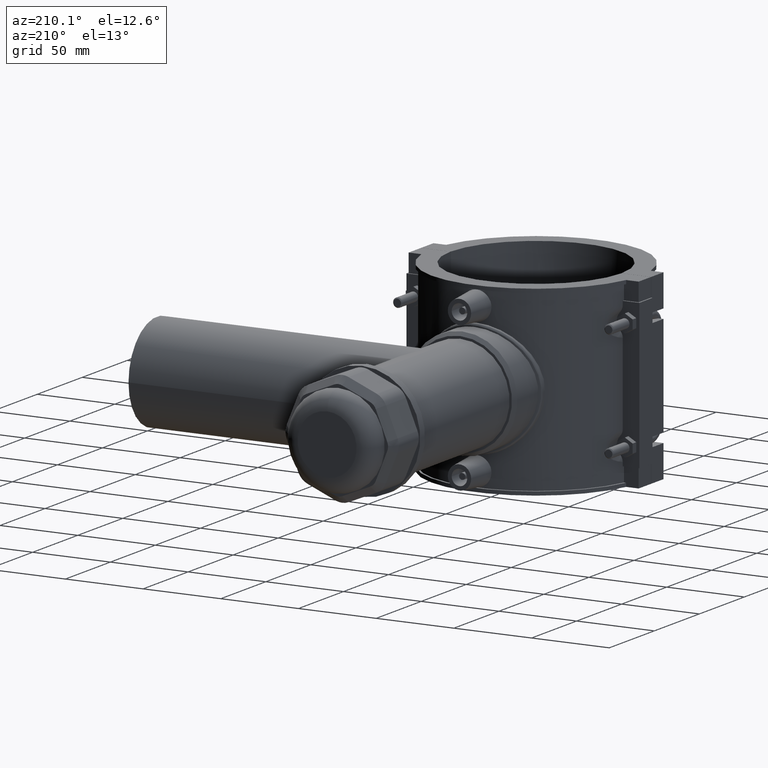
[diagram: clean part render]
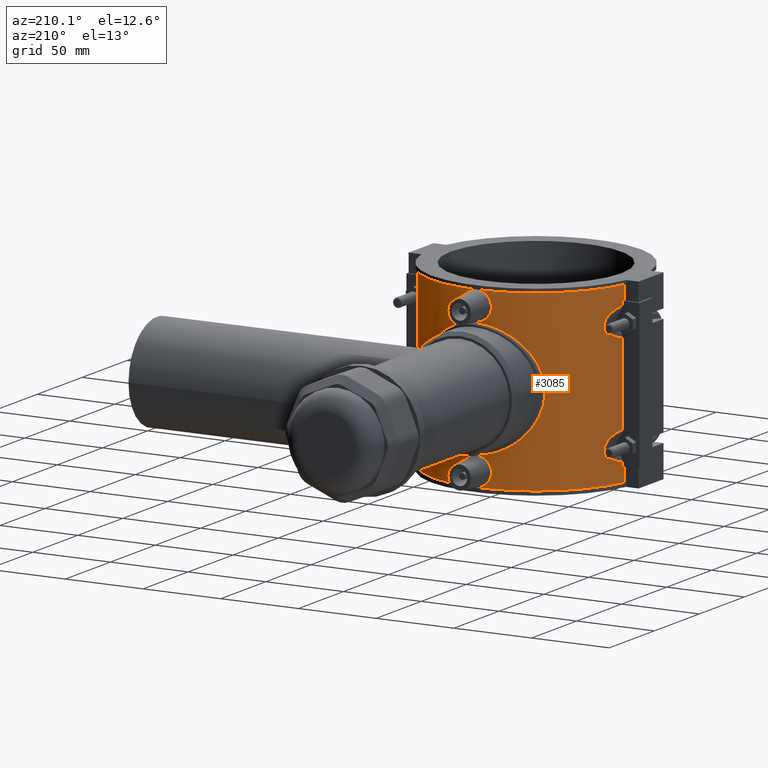
[diagram: same view with one face highlighted and labeled with its STEP entity id]
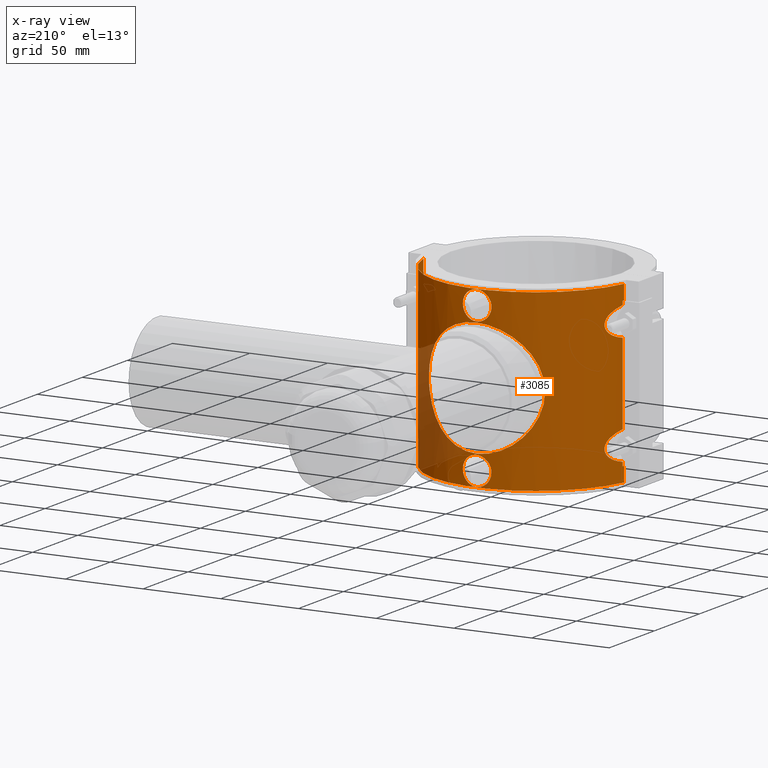
[diagram: x-ray of the same camera — body ghosted, the highlighted face saturated]
A machine part, auxiliary view. The second image highlights one B-rep face of the part: STEP entity #3085.
The next image is the same camera in x-ray: the body ghosted, the highlighted face saturated — about 9% of this face is hidden behind the body in this view.
In plain terms, the highlighted cylindrical surface (partial cylindrical patch) has radius 66 mm, axis along (0, 0, 1).
Its self-contained STEP definition (entity closure, byte-faithful):
#104=LINE('',#5264,#383);
#124=LINE('',#5347,#403);
#128=LINE('',#5355,#407);
#129=LINE('',#5359,#408);
#130=LINE('',#5374,#409);
#131=LINE('',#5391,#410);
#132=LINE('',#5394,#411);
#133=LINE('',#5398,#412);
#134=LINE('',#5414,#413);
#135=LINE('',#5431,#414);
#383=VECTOR('',#3762,9.43999999999999);
#403=VECTOR('',#3810,9.43999999999999);
#407=VECTOR('',#3816,9.43999999999999);
#408=VECTOR('',#3819,2.44823811899649);
#409=VECTOR('',#3820,52.096476237993);
#410=VECTOR('',#3821,2.4482381189965);
#411=VECTOR('',#3824,9.43999999999999);
#412=VECTOR('',#3827,2.4482381189965);
#413=VECTOR('',#3828,52.096476237993);
#414=VECTOR('',#3829,2.44823811899649);
#617=FACE_BOUND('',#1021,.T.);
#618=FACE_BOUND('',#1022,.T.);
#619=FACE_BOUND('',#1023,.T.);
#665=B_SPLINE_CURVE_WITH_KNOTS('',3,(#5166,#5167,#5168,#5169,#5170,#5171,
#5172,#5173,#5174,#5175,#5176,#5177,#5178,#5179,#5180,#5181,#5182,#5183,
#5184,#5185,#5186,#5187,#5188,#5189,#5190,#5191,#5192,#5193,#5194,#5195,
#5196,#5197,#5198,#5199,#5200,#5201,#5202,#5203,#5204,#5205,#5206,#5207,
#5208,#5209,#5210,#5211,#5212,#5213,#5214,#5215,#5216,#5217,#5218,#5219,
#5220,#5221,#5222,#5223,#5224,#5225,#5226,#5227,#5228,#5229,#5230,#5231),
 .UNSPECIFIED.,.T.,.F.,(4,2,2,2,2,2,2,2,2,2,2,2,2,2,2,2,2,2,2,2,2,2,2,2,
2,2,2,2,2,2,2,2,4),(0.,0.725542728932933,1.45108545786587,2.1766281867988,
2.90217091573173,3.62416505609038,4.34615919644903,5.06815333680768,5.79014747716633,
6.51214161752498,7.23413575788363,7.95612989824228,8.67812403860093,9.40366676753387,
10.1292094964668,10.8547522253997,11.5802949543327,12.3058376832656,13.0313804121985,
13.7569231411315,14.4824658700644,15.2044600104231,15.9264541507817,16.6484482911404,
17.370442431499,18.0924365718577,18.8144307122163,19.536424852575,20.2584189929336,
20.9839617218665,21.7095044507995,22.4350471797324,23.1605899086653),
 .UNSPECIFIED.);
#668=B_SPLINE_CURVE_WITH_KNOTS('',3,(#5361,#5362,#5363,#5364,#5365,#5366,
#5367,#5368,#5369,#5370,#5371,#5372),.UNSPECIFIED.,.F.,.F.,(4,1,1,1,1,1,
1,1,1,4),(-3.87372629675472,-3.39800032867908,-2.92227436060344,-2.44654839252779,
-2.32761690050888,-1.97082242445215,-1.73295944041433,-1.49509645637651,
-1.01937048830087,-0.543644520225222),.UNSPECIFIED.);
#669=B_SPLINE_CURVE_WITH_KNOTS('',3,(#5376,#5377,#5378,#5379,#5380,#5381,
#5382,#5383,#5384,#5385,#5386,#5387,#5388,#5389),.UNSPECIFIED.,.F.,.F.,
(4,1,1,1,1,1,1,1,1,1,1,4),(-3.87372630043149,-3.3980003318308,-2.92227436323011,
-2.68441137892976,-2.44654839462942,-2.20868541032907,-1.97082242602873,
-1.85189093387856,-1.73295944172838,-1.49509645742804,-1.01937048882735,
-0.543644520226659),.UNSPECIFIED.);
#670=B_SPLINE_CURVE_WITH_KNOTS('',3,(#5400,#5401,#5402,#5403,#5404,#5405,
#5406,#5407,#5408,#5409,#5410,#5411,#5412),.UNSPECIFIED.,.F.,.F.,(4,1,1,
1,1,1,1,1,1,1,4),(-3.87318618089828,-3.39746020268988,-2.92173422448147,
-2.68387123537727,-2.44600824627306,-2.20814525716886,-1.97028226806466,
-1.73241927896045,-1.49455628985625,-1.01883031164784,-0.543104333439435),
 .UNSPECIFIED.);
#671=B_SPLINE_CURVE_WITH_KNOTS('',3,(#5416,#5417,#5418,#5419,#5420,#5421,
#5422,#5423,#5424,#5425,#5426,#5427,#5428,#5429),.UNSPECIFIED.,.F.,.F.,
(4,1,1,1,1,1,1,1,1,1,1,4),(-3.87372630198934,-3.39800033316619,-2.92227436434304,
-2.68441137993146,-2.44654839551988,-2.20868541110831,-1.97082242669673,
-1.85189093449094,-1.73295944228515,-1.49509645787358,-1.01937048905042,
-0.543644520227269),.UNSPECIFIED.);
#672=B_SPLINE_CURVE_WITH_KNOTS('',3,(#5434,#5435,#5436,#5437,#5438,#5439,
#5440,#5441,#5442,#5443,#5444,#5445,#5446,#5447,#5448,#5449,#5450,#5451,
#5452,#5453,#5454,#5455,#5456,#5457,#5458,#5459,#5460,#5461,#5462,#5463,
#5464,#5465,#5466,#5467),.UNSPECIFIED.,.T.,.F.,(4,2,2,2,2,2,2,2,2,2,2,2,
2,2,2,2,4),(0.,0.346935904986798,0.693871809973595,1.04030921731693,1.38674662466027,
1.73318403200361,2.07962143934695,2.42655734433375,2.77349324932054,3.12042915430734,
3.46736505929414,3.81380246663748,4.16023987398082,4.50667728132415,4.85311468866749,
5.20005059365429,5.54698649864109),.UNSPECIFIED.);
#673=B_SPLINE_CURVE_WITH_KNOTS('',3,(#5469,#5470,#5471,#5472,#5473,#5474,
#5475,#5476,#5477,#5478,#5479,#5480,#5481,#5482,#5483,#5484,#5485,#5486,
#5487,#5488,#5489,#5490,#5491,#5492,#5493,#5494,#5495,#5496,#5497,#5498,
#5499,#5500,#5501,#5502),.UNSPECIFIED.,.T.,.F.,(4,2,2,2,2,2,2,2,2,2,2,2,
2,2,2,2,4),(0.,0.346935904986798,0.693871809973595,1.04030921731693,1.38674662466027,
1.73318403200361,2.07962143934695,2.42655734433375,2.77349324932054,3.12042915430734,
3.46736505929414,3.81380246663748,4.16023987398082,4.50667728132415,4.85311468866749,
5.20005059365429,5.54698649864109),.UNSPECIFIED.);
#726=CYLINDRICAL_SURFACE('',#3322,66.);
#816=FACE_OUTER_BOUND('',#1020,.T.);
#1020=EDGE_LOOP('',(#2281,#2282,#2283,#2284,#2285,#2286,#2287,#2288,#2289,
#2290,#2291,#2292,#2293,#2294,#2295,#2296,#2297,#2298,#2299,#2300));
#1021=EDGE_LOOP('',(#2301));
#1022=EDGE_LOOP('',(#2302));
#1023=EDGE_LOOP('',(#2303));
#1221=CIRCLE('',#3301,66.);
#1229=CIRCLE('',#3315,66.);
#1233=CIRCLE('',#3323,66.);
#1234=CIRCLE('',#3324,66.);
#1235=CIRCLE('',#3325,66.);
#1236=CIRCLE('',#3326,66.);
#1359=VERTEX_POINT('',#5165);
#1364=VERTEX_POINT('',#5242);
#1365=VERTEX_POINT('',#5244);
#1372=VERTEX_POINT('',#5263);
#1392=VERTEX_POINT('',#5330);
#1393=VERTEX_POINT('',#5332);
#1397=VERTEX_POINT('',#5346);
#1400=VERTEX_POINT('',#5354);
#1401=VERTEX_POINT('',#5356);
#1402=VERTEX_POINT('',#5358);
#1403=VERTEX_POINT('',#5360);
#1404=VERTEX_POINT('',#5373);
#1405=VERTEX_POINT('',#5375);
#1406=VERTEX_POINT('',#5390);
#1407=VERTEX_POINT('',#5393);
#1408=VERTEX_POINT('',#5395);
#1409=VERTEX_POINT('',#5397);
#1410=VERTEX_POINT('',#5399);
#1411=VERTEX_POINT('',#5413);
#1412=VERTEX_POINT('',#5415);
#1413=VERTEX_POINT('',#5430);
#1414=VERTEX_POINT('',#5433);
#1415=VERTEX_POINT('',#5468);
#1687=EDGE_CURVE('',#1359,#1359,#665,.T.);
#1694=EDGE_CURVE('',#1364,#1365,#1221,.T.);
#1702=EDGE_CURVE('',#1372,#1364,#104,.T.);
#1725=EDGE_CURVE('',#1393,#1392,#1229,.T.);
#1732=EDGE_CURVE('',#1393,#1397,#124,.T.);
#1736=EDGE_CURVE('',#1400,#1365,#128,.T.);
#1737=EDGE_CURVE('',#1400,#1401,#1233,.T.);
#1738=EDGE_CURVE('',#1401,#1402,#129,.T.);
#1739=EDGE_CURVE('',#1403,#1402,#668,.T.);
#1740=EDGE_CURVE('',#1403,#1404,#130,.T.);
#1741=EDGE_CURVE('',#1405,#1404,#669,.T.);
#1742=EDGE_CURVE('',#1405,#1406,#131,.T.);
#1743=EDGE_CURVE('',#1406,#1397,#1234,.T.);
#1744=EDGE_CURVE('',#1392,#1407,#132,.T.);
#1745=EDGE_CURVE('',#1407,#1408,#1235,.T.);
#1746=EDGE_CURVE('',#1408,#1409,#133,.T.);
#1747=EDGE_CURVE('',#1410,#1409,#670,.T.);
#1748=EDGE_CURVE('',#1410,#1411,#134,.T.);
#1749=EDGE_CURVE('',#1412,#1411,#671,.T.);
#1750=EDGE_CURVE('',#1412,#1413,#135,.T.);
#1751=EDGE_CURVE('',#1413,#1372,#1236,.T.);
#1752=EDGE_CURVE('',#1414,#1414,#672,.T.);
#1753=EDGE_CURVE('',#1415,#1415,#673,.T.);
#2281=ORIENTED_EDGE('',*,*,#1694,.T.);
#2282=ORIENTED_EDGE('',*,*,#1736,.F.);
#2283=ORIENTED_EDGE('',*,*,#1737,.T.);
#2284=ORIENTED_EDGE('',*,*,#1738,.T.);
#2285=ORIENTED_EDGE('',*,*,#1739,.F.);
#2286=ORIENTED_EDGE('',*,*,#1740,.T.);
#2287=ORIENTED_EDGE('',*,*,#1741,.F.);
#2288=ORIENTED_EDGE('',*,*,#1742,.T.);
#2289=ORIENTED_EDGE('',*,*,#1743,.T.);
#2290=ORIENTED_EDGE('',*,*,#1732,.F.);
#2291=ORIENTED_EDGE('',*,*,#1725,.T.);
#2292=ORIENTED_EDGE('',*,*,#1744,.T.);
#2293=ORIENTED_EDGE('',*,*,#1745,.T.);
#2294=ORIENTED_EDGE('',*,*,#1746,.T.);
#2295=ORIENTED_EDGE('',*,*,#1747,.F.);
#2296=ORIENTED_EDGE('',*,*,#1748,.T.);
#2297=ORIENTED_EDGE('',*,*,#1749,.F.);
#2298=ORIENTED_EDGE('',*,*,#1750,.T.);
#2299=ORIENTED_EDGE('',*,*,#1751,.T.);
#2300=ORIENTED_EDGE('',*,*,#1702,.T.);
#2301=ORIENTED_EDGE('',*,*,#1687,.T.);
#2302=ORIENTED_EDGE('',*,*,#1752,.T.);
#2303=ORIENTED_EDGE('',*,*,#1753,.T.);
#3085=ADVANCED_FACE('',(#816,#617,#618,#619),#726,.T.);
#3301=AXIS2_PLACEMENT_3D('',#5246,#3744,#3745);
#3315=AXIS2_PLACEMENT_3D('',#5333,#3793,#3794);
#3322=AXIS2_PLACEMENT_3D('',#5353,#3814,#3815);
#3323=AXIS2_PLACEMENT_3D('',#5357,#3817,#3818);
#3324=AXIS2_PLACEMENT_3D('',#5392,#3822,#3823);
#3325=AXIS2_PLACEMENT_3D('',#5396,#3825,#3826);
#3326=AXIS2_PLACEMENT_3D('',#5432,#3830,#3831);
#3744=DIRECTION('center_axis',(0.,0.,1.));
#3745=DIRECTION('ref_axis',(1.,0.,0.));
#3762=DIRECTION('',(0.,0.,-1.));
#3793=DIRECTION('center_axis',(0.,0.,-1.));
#3794=DIRECTION('ref_axis',(1.,0.,0.));
#3810=DIRECTION('',(0.,0.,-1.));
#3814=DIRECTION('center_axis',(0.,0.,1.));
#3815=DIRECTION('ref_axis',(1.,0.,0.));
#3816=DIRECTION('',(0.,0.,-1.));
#3817=DIRECTION('center_axis',(0.,0.,-1.));
#3818=DIRECTION('ref_axis',(1.,0.,0.));
#3819=DIRECTION('',(0.,0.,1.));
#3820=DIRECTION('',(0.,0.,1.));
#3821=DIRECTION('',(0.,0.,1.));
#3822=DIRECTION('center_axis',(0.,0.,1.));
#3823=DIRECTION('ref_axis',(1.,0.,0.));
#3824=DIRECTION('',(0.,0.,-1.));
#3825=DIRECTION('center_axis',(0.,0.,1.));
#3826=DIRECTION('ref_axis',(1.,0.,0.));
#3827=DIRECTION('',(0.,0.,-1.));
#3828=DIRECTION('',(0.,0.,-1.));
#3829=DIRECTION('',(0.,0.,-1.));
#3830=DIRECTION('center_axis',(0.,0.,-1.));
#3831=DIRECTION('ref_axis',(1.,0.,0.));
#5165=CARTESIAN_POINT('',(37.4,54.3805112149564,1.66533453693773E-14));
#5166=CARTESIAN_POINT('Ctrl Pts',(37.4,54.3805112149564,5.55111512312578E-16));
#5167=CARTESIAN_POINT('Ctrl Pts',(37.4,54.3805112149564,2.41847576310978));
#5168=CARTESIAN_POINT('Ctrl Pts',(37.161839003041,54.5466959266596,4.89367138877894));
#5169=CARTESIAN_POINT('Ctrl Pts',(36.1861310870905,55.1988064124212,9.77313752308639));
#5170=CARTESIAN_POINT('Ctrl Pts',(35.4490569399691,55.6833472079297,12.1776875482335));
#5171=CARTESIAN_POINT('Ctrl Pts',(33.5268818710942,56.8613988495874,16.759483445807));
#5172=CARTESIAN_POINT('Ctrl Pts',(32.3402312880143,57.5542145172149,18.9413900650701));
#5173=CARTESIAN_POINT('Ctrl Pts',(29.6168256407249,59.0018796895188,22.96759580585));
#5174=CARTESIAN_POINT('Ctrl Pts',(28.079576648165,59.7554780190203,24.8120105845888));
#5175=CARTESIAN_POINT('Ctrl Pts',(24.8200013252692,61.181012447245,28.0715859074846));
#5176=CARTESIAN_POINT('Ctrl Pts',(22.9796563810843,61.9067502295079,29.607582738943));
#5177=CARTESIAN_POINT('Ctrl Pts',(18.9521567466192,63.2560359644058,32.3340272483939));
#5178=CARTESIAN_POINT('Ctrl Pts',(16.7648267214637,63.8786503921841,33.5246778260897));
#5179=CARTESIAN_POINT('Ctrl Pts',(12.1713059827279,64.9107133927396,35.4516965648964));
#5180=CARTESIAN_POINT('Ctrl Pts',(9.76054283025698,65.3204804039122,36.1896157420675));
#5181=CARTESIAN_POINT('Ctrl Pts',(4.87826740173336,65.865285725618,37.163947463763));
#5182=CARTESIAN_POINT('Ctrl Pts',(2.40664713452884,66.,37.4));
#5183=CARTESIAN_POINT('Ctrl Pts',(-2.40664713452883,66.,37.4));
#5184=CARTESIAN_POINT('Ctrl Pts',(-4.87826740173336,65.865285725618,37.163947463763));
#5185=CARTESIAN_POINT('Ctrl Pts',(-9.76054283025697,65.3204804039122,36.1896157420675));
#5186=CARTESIAN_POINT('Ctrl Pts',(-12.1713059827279,64.9107133927396,35.4516965648964));
#5187=CARTESIAN_POINT('Ctrl Pts',(-16.7648267214637,63.8786503921841,33.5246778260897));
#5188=CARTESIAN_POINT('Ctrl Pts',(-18.9521567466192,63.2560359644058,32.3340272483939));
#5189=CARTESIAN_POINT('Ctrl Pts',(-22.9796563810843,61.9067502295079,29.607582738943));
#5190=CARTESIAN_POINT('Ctrl Pts',(-24.8200013252692,61.181012447245,28.0715859074846));
#5191=CARTESIAN_POINT('Ctrl Pts',(-28.079576648165,59.7554780190203,24.8120105845888));
#5192=CARTESIAN_POINT('Ctrl Pts',(-29.6168256407249,59.0018796895188,22.96759580585));
#5193=CARTESIAN_POINT('Ctrl Pts',(-32.3402312880143,57.5542145172149,18.9413900650701));
#5194=CARTESIAN_POINT('Ctrl Pts',(-33.5268818710942,56.8613988495874,16.759483445807));
#5195=CARTESIAN_POINT('Ctrl Pts',(-35.4490569399691,55.6833472079297,12.1776875482335));
#5196=CARTESIAN_POINT('Ctrl Pts',(-36.1861310870905,55.1988064124211,9.77313752308639));
#5197=CARTESIAN_POINT('Ctrl Pts',(-37.161839003041,54.5466959266596,4.89367138877893));
#5198=CARTESIAN_POINT('Ctrl Pts',(-37.4,54.3805112149564,2.41847576310977));
#5199=CARTESIAN_POINT('Ctrl Pts',(-37.4,54.3805112149564,-2.41847576310978));
#5200=CARTESIAN_POINT('Ctrl Pts',(-37.161839003041,54.5466959266596,-4.89367138877893));
#5201=CARTESIAN_POINT('Ctrl Pts',(-36.1861310870905,55.1988064124211,-9.77313752308638));
#5202=CARTESIAN_POINT('Ctrl Pts',(-35.4490569399691,55.6833472079297,-12.1776875482335));
#5203=CARTESIAN_POINT('Ctrl Pts',(-33.5268818710942,56.8613988495874,-16.759483445807));
#5204=CARTESIAN_POINT('Ctrl Pts',(-32.3402312880143,57.5542145172149,-18.9413900650701));
#5205=CARTESIAN_POINT('Ctrl Pts',(-29.6168256407249,59.0018796895188,-22.96759580585));
#5206=CARTESIAN_POINT('Ctrl Pts',(-28.079576648165,59.7554780190203,-24.8120105845888));
#5207=CARTESIAN_POINT('Ctrl Pts',(-24.8200013252692,61.181012447245,-28.0715859074846));
#5208=CARTESIAN_POINT('Ctrl Pts',(-22.9796563810843,61.9067502295079,-29.607582738943));
#5209=CARTESIAN_POINT('Ctrl Pts',(-18.9521567466192,63.2560359644058,-32.3340272483939));
#5210=CARTESIAN_POINT('Ctrl Pts',(-16.7648267214637,63.8786503921841,-33.5246778260897));
#5211=CARTESIAN_POINT('Ctrl Pts',(-12.1713059827279,64.9107133927396,-35.4516965648964));
#5212=CARTESIAN_POINT('Ctrl Pts',(-9.76054283025697,65.3204804039122,-36.1896157420675));
#5213=CARTESIAN_POINT('Ctrl Pts',(-4.87826740173336,65.865285725618,-37.163947463763));
#5214=CARTESIAN_POINT('Ctrl Pts',(-2.40664713452884,66.,-37.4));
#5215=CARTESIAN_POINT('Ctrl Pts',(2.40664713452883,66.,-37.4));
#5216=CARTESIAN_POINT('Ctrl Pts',(4.87826740173334,65.865285725618,-37.163947463763));
#5217=CARTESIAN_POINT('Ctrl Pts',(9.76054283025695,65.3204804039122,-36.1896157420676));
#5218=CARTESIAN_POINT('Ctrl Pts',(12.1713059827279,64.9107133927396,-35.4516965648964));
#5219=CARTESIAN_POINT('Ctrl Pts',(16.7648267214637,63.8786503921841,-33.5246778260897));
#5220=CARTESIAN_POINT('Ctrl Pts',(18.9521567466192,63.2560359644058,-32.3340272483939));
#5221=CARTESIAN_POINT('Ctrl Pts',(22.9796563810843,61.9067502295079,-29.607582738943));
#5222=CARTESIAN_POINT('Ctrl Pts',(24.8200013252692,61.181012447245,-28.0715859074846));
#5223=CARTESIAN_POINT('Ctrl Pts',(28.079576648165,59.7554780190203,-24.8120105845888));
#5224=CARTESIAN_POINT('Ctrl Pts',(29.6168256407249,59.0018796895188,-22.96759580585));
#5225=CARTESIAN_POINT('Ctrl Pts',(32.3402312880143,57.5542145172149,-18.9413900650701));
#5226=CARTESIAN_POINT('Ctrl Pts',(33.5268818710942,56.8613988495874,-16.759483445807));
#5227=CARTESIAN_POINT('Ctrl Pts',(35.4490569399691,55.6833472079297,-12.1776875482335));
#5228=CARTESIAN_POINT('Ctrl Pts',(36.1861310870905,55.1988064124211,-9.77313752308638));
#5229=CARTESIAN_POINT('Ctrl Pts',(37.161839003041,54.5466959266596,-4.89367138877893));
#5230=CARTESIAN_POINT('Ctrl Pts',(37.4,54.3805112149564,-2.41847576310978));
#5231=CARTESIAN_POINT('Ctrl Pts',(37.4,54.3805112149564,-1.11022302462516E-15));
#5242=CARTESIAN_POINT('',(64.5518202686803,13.75,-56.64));
#5244=CARTESIAN_POINT('',(-64.5518202686803,13.75,-56.64));
#5246=CARTESIAN_POINT('Origin',(0.,0.,-56.64));
#5263=CARTESIAN_POINT('',(64.5518202686802,13.7500000000001,-47.2));
#5264=CARTESIAN_POINT('',(64.5518202686803,13.75,0.));
#5330=CARTESIAN_POINT('',(64.5518202686803,13.75,56.64));
#5332=CARTESIAN_POINT('',(-64.5518202686803,13.75,56.64));
#5333=CARTESIAN_POINT('Origin',(0.,0.,56.64));
#5346=CARTESIAN_POINT('',(-64.5518202686802,13.7500000000001,47.2));
#5347=CARTESIAN_POINT('',(-64.5518202686803,13.75,0.));
#5353=CARTESIAN_POINT('Origin',(0.,0.,0.));
#5354=CARTESIAN_POINT('',(-64.5518202686802,13.7500000000001,-47.2));
#5355=CARTESIAN_POINT('',(-64.5518202686803,13.75,0.));
#5356=CARTESIAN_POINT('',(-64.3306886330311,14.7500000000003,-47.2));
#5357=CARTESIAN_POINT('Origin',(0.,0.,-47.2));
#5358=CARTESIAN_POINT('',(-64.3306886330311,14.7500000000003,-44.7517618810035));
#5359=CARTESIAN_POINT('',(-64.3306886330311,14.7500000000003,0.));
#5360=CARTESIAN_POINT('',(-64.3306886330311,14.7500000000003,-26.0482381189965));
#5361=CARTESIAN_POINT('Ctrl Pts',(-64.3306886330311,14.7500000000003,-26.0482381189965));
#5362=CARTESIAN_POINT('Ctrl Pts',(-63.9527912554927,16.3981626121804,-26.3827329004399));
#5363=CARTESIAN_POINT('Ctrl Pts',(-63.0778690868478,19.6261025075132,-27.2310383266353));
#5364=CARTESIAN_POINT('Ctrl Pts',(-61.5137264809278,24.0558903026526,-29.3000957522392));
#5365=CARTESIAN_POINT('Ctrl Pts',(-60.3897986198586,26.6421844238724,-31.9335356590793));
#5366=CARTESIAN_POINT('Ctrl Pts',(-59.9224916991423,27.6653952476638,-34.9717815952484));
#5367=CARTESIAN_POINT('Ctrl Pts',(-60.0554425576268,27.3816590012757,-37.4440252437804));
#5368=CARTESIAN_POINT('Ctrl Pts',(-60.7699777265275,25.7702881327455,-39.7566764526898));
#5369=CARTESIAN_POINT('Ctrl Pts',(-61.7657357889132,23.3326659218883,-41.8352017051385));
#5370=CARTESIAN_POINT('Ctrl Pts',(-63.0806192708269,19.6212087501384,-43.5753048876795));
#5371=CARTESIAN_POINT('Ctrl Pts',(-63.9527912554927,16.3981626121804,-44.4172670995602));
#5372=CARTESIAN_POINT('Ctrl Pts',(-64.3306886330311,14.7500000000003,-44.7517618810035));
#5373=CARTESIAN_POINT('',(-64.3306886330311,14.7500000000003,26.0482381189965));
#5374=CARTESIAN_POINT('',(-64.3306886330311,14.7500000000003,0.));
#5375=CARTESIAN_POINT('',(-64.3306886330311,14.7500000000003,44.7517618810035));
#5376=CARTESIAN_POINT('Ctrl Pts',(-64.3306886330311,14.7500000000003,44.7517618810035));
#5377=CARTESIAN_POINT('Ctrl Pts',(-63.9527912572163,16.3981626046634,44.4172671010857));
#5378=CARTESIAN_POINT('Ctrl Pts',(-63.0798147120383,19.6225851019796,43.5753357245552));
#5379=CARTESIAN_POINT('Ctrl Pts',(-61.7685213603749,23.3278982985863,41.834867320585));
#5380=CARTESIAN_POINT('Ctrl Pts',(-60.768119001488,25.7734565677027,39.7567991110615));
#5381=CARTESIAN_POINT('Ctrl Pts',(-60.1667084578027,27.1355063513127,37.7748837116343));
#5382=CARTESIAN_POINT('Ctrl Pts',(-59.9165282850681,27.6756756011679,35.3998998402149));
#5383=CARTESIAN_POINT('Ctrl Pts',(-60.1248627173646,27.2257424100493,33.4215328100373));
#5384=CARTESIAN_POINT('Ctrl Pts',(-60.4687588967187,26.4521723165861,32.0345097618895));
#5385=CARTESIAN_POINT('Ctrl Pts',(-60.8927014330096,25.4685179279021,30.782923973912));
#5386=CARTESIAN_POINT('Ctrl Pts',(-61.7684514854648,23.3278392592335,28.9644641587819));
#5387=CARTESIAN_POINT('Ctrl Pts',(-63.0818663583026,19.6193517478855,27.2259037664876));
#5388=CARTESIAN_POINT('Ctrl Pts',(-63.9527912572163,16.3981626046634,26.3827328989143));
#5389=CARTESIAN_POINT('Ctrl Pts',(-64.3306886330311,14.7500000000003,26.0482381189965));
#5390=CARTESIAN_POINT('',(-64.3306886330311,14.7500000000003,47.2));
#5391=CARTESIAN_POINT('',(-64.3306886330311,14.7500000000003,0.));
#5392=CARTESIAN_POINT('Origin',(0.,0.,47.2));
#5393=CARTESIAN_POINT('',(64.5518202686802,13.7500000000001,47.2));
#5394=CARTESIAN_POINT('',(64.5518202686803,13.75,0.));
#5395=CARTESIAN_POINT('',(64.3306886330311,14.7500000000003,47.2));
#5396=CARTESIAN_POINT('Origin',(0.,0.,47.2));
#5397=CARTESIAN_POINT('',(64.3306886330311,14.7500000000003,44.7517618810035));
#5398=CARTESIAN_POINT('',(64.3306886330311,14.7500000000003,0.));
#5399=CARTESIAN_POINT('',(64.3306886330311,14.7500000000003,26.0482381189965));
#5400=CARTESIAN_POINT('Ctrl Pts',(64.3306886330311,14.7500000000003,26.0482381189965));
#5401=CARTESIAN_POINT('Ctrl Pts',(63.952791309994,16.3981623744786,26.3827328521982));
#5402=CARTESIAN_POINT('Ctrl Pts',(63.0799501970877,19.6223641748561,27.2247398125881));
#5403=CARTESIAN_POINT('Ctrl Pts',(61.7690149009054,23.3269890739918,28.9649255324313));
#5404=CARTESIAN_POINT('Ctrl Pts',(60.7688438422129,25.7722361974724,31.0434417467119));
#5405=CARTESIAN_POINT('Ctrl Pts',(60.1680089295915,27.1333112507977,33.0259091161999));
#5406=CARTESIAN_POINT('Ctrl Pts',(59.9162757439481,27.676117016215,35.3996289848923));
#5407=CARTESIAN_POINT('Ctrl Pts',(60.1670476180397,27.1349532376828,37.774845601644));
#5408=CARTESIAN_POINT('Ctrl Pts',(60.7681726460776,25.7733774635095,39.7567281726444));
#5409=CARTESIAN_POINT('Ctrl Pts',(61.7686494910263,23.3276910734894,41.8348509701333));
#5410=CARTESIAN_POINT('Ctrl Pts',(63.0797928410758,19.6226227709339,43.5753333933684));
#5411=CARTESIAN_POINT('Ctrl Pts',(63.952791309994,16.3981623744787,44.4172671478017));
#5412=CARTESIAN_POINT('Ctrl Pts',(64.3306886330311,14.7500000000003,44.7517618810035));
#5413=CARTESIAN_POINT('',(64.3306886330311,14.7500000000003,-26.0482381189965));
#5414=CARTESIAN_POINT('',(64.3306886330311,14.7500000000003,0.));
#5415=CARTESIAN_POINT('',(64.3306886330311,14.7500000000003,-44.7517618810035));
#5416=CARTESIAN_POINT('Ctrl Pts',(64.3306886330311,14.7500000000003,-44.7517618810035));
#5417=CARTESIAN_POINT('Ctrl Pts',(63.9527912579466,16.3981626014784,-44.4172671017321));
#5418=CARTESIAN_POINT('Ctrl Pts',(63.0798147157983,19.6225850900723,-43.575335728822));
#5419=CARTESIAN_POINT('Ctrl Pts',(61.7685213610513,23.3278982974153,-41.8348673221215));
#5420=CARTESIAN_POINT('Ctrl Pts',(60.7681190021769,25.773456566055,-39.7567991128281));
#5421=CARTESIAN_POINT('Ctrl Pts',(60.1667084578722,27.1355063513081,-37.77488371266));
#5422=CARTESIAN_POINT('Ctrl Pts',(59.9165282849716,27.6756756014109,-35.3998998402089));
#5423=CARTESIAN_POINT('Ctrl Pts',(60.1248627174564,27.2257424098971,-33.4215328091261));
#5424=CARTESIAN_POINT('Ctrl Pts',(60.4687588970809,26.4521723158343,-32.0345097604762));
#5425=CARTESIAN_POINT('Ctrl Pts',(60.8927014337618,25.4685179260804,-30.7829239720969));
#5426=CARTESIAN_POINT('Ctrl Pts',(61.768451486373,23.3278392572585,-28.9644641569858));
#5427=CARTESIAN_POINT('Ctrl Pts',(63.0818663616767,19.619351737298,-27.2259037626193));
#5428=CARTESIAN_POINT('Ctrl Pts',(63.9527912579466,16.3981626014784,-26.3827328982679));
#5429=CARTESIAN_POINT('Ctrl Pts',(64.3306886330311,14.7500000000003,-26.0482381189965));
#5430=CARTESIAN_POINT('',(64.3306886330311,14.7500000000003,-47.2));
#5431=CARTESIAN_POINT('',(64.3306886330311,14.7500000000003,0.));
#5432=CARTESIAN_POINT('Origin',(0.,0.,-47.2));
#5433=CARTESIAN_POINT('',(9.21889149209569,65.3529803425748,-47.2));
#5434=CARTESIAN_POINT('Ctrl Pts',(9.21889149209569,65.3529803425748,-47.2));
#5435=CARTESIAN_POINT('Ctrl Pts',(9.21889149209569,65.3529803425748,-46.0435469833774));
#5436=CARTESIAN_POINT('Ctrl Pts',(8.98509660190144,65.3872751603227,-44.8119297781224));
#5437=CARTESIAN_POINT('Ctrl Pts',(8.03868301556763,65.5103601412207,-42.5506935355608));
#5438=CARTESIAN_POINT('Ctrl Pts',(7.32619281653862,65.5972977842866,-41.5209202636936));
#5439=CARTESIAN_POINT('Ctrl Pts',(5.68787926987002,65.7595974634724,-39.8987494664931));
#5440=CARTESIAN_POINT('Ctrl Pts',(4.65283917326547,65.8455692822516,-39.1970628078988));
#5441=CARTESIAN_POINT('Ctrl Pts',(2.38634954577356,65.9666070224349,-38.2665218689298));
#5442=CARTESIAN_POINT('Ctrl Pts',(1.15479135781113,66.,-38.0377153930075));
#5443=CARTESIAN_POINT('Ctrl Pts',(-1.15479135781113,66.,-38.0377153930075));
#5444=CARTESIAN_POINT('Ctrl Pts',(-2.38634954577356,65.9666070224349,-38.2665218689298));
#5445=CARTESIAN_POINT('Ctrl Pts',(-4.65283917326547,65.8455692822516,-39.1970628078988));
#5446=CARTESIAN_POINT('Ctrl Pts',(-5.68787926987002,65.7595974634724,-39.8987494664931));
#5447=CARTESIAN_POINT('Ctrl Pts',(-7.32619281653862,65.5972977842866,-41.5209202636936));
#5448=CARTESIAN_POINT('Ctrl Pts',(-8.03868301556763,65.5103601412207,-42.5506935355608));
#5449=CARTESIAN_POINT('Ctrl Pts',(-8.98509660190144,65.3872751603227,-44.8119297781224));
#5450=CARTESIAN_POINT('Ctrl Pts',(-9.21889149209569,65.3529803425748,-46.0435469833774));
#5451=CARTESIAN_POINT('Ctrl Pts',(-9.21889149209569,65.3529803425748,-48.3564530166227));
#5452=CARTESIAN_POINT('Ctrl Pts',(-8.98509660190144,65.3872751603227,-49.5880702218776));
#5453=CARTESIAN_POINT('Ctrl Pts',(-8.03868301556763,65.5103601412207,-51.8493064644393));
#5454=CARTESIAN_POINT('Ctrl Pts',(-7.32619281653862,65.5972977842866,-52.8790797363064));
#5455=CARTESIAN_POINT('Ctrl Pts',(-5.68787926987002,65.7595974634724,-54.501250533507));
#5456=CARTESIAN_POINT('Ctrl Pts',(-4.65283917326547,65.8455692822516,-55.2029371921012));
#5457=CARTESIAN_POINT('Ctrl Pts',(-2.38634954577356,65.9666070224349,-56.1334781310702));
#5458=CARTESIAN_POINT('Ctrl Pts',(-1.15479135781113,66.,-56.3622846069926));
#5459=CARTESIAN_POINT('Ctrl Pts',(1.15479135781112,66.,-56.3622846069926));
#5460=CARTESIAN_POINT('Ctrl Pts',(2.38634954577355,65.9666070224349,-56.1334781310702));
#5461=CARTESIAN_POINT('Ctrl Pts',(4.65283917326546,65.8455692822516,-55.2029371921012));
#5462=CARTESIAN_POINT('Ctrl Pts',(5.68787926987002,65.7595974634724,-54.501250533507));
#5463=CARTESIAN_POINT('Ctrl Pts',(7.32619281653862,65.5972977842866,-52.8790797363065));
#5464=CARTESIAN_POINT('Ctrl Pts',(8.03868301556763,65.5103601412207,-51.8493064644393));
#5465=CARTESIAN_POINT('Ctrl Pts',(8.98509660190144,65.3872751603227,-49.5880702218776));
#5466=CARTESIAN_POINT('Ctrl Pts',(9.21889149209569,65.3529803425748,-48.3564530166227));
#5467=CARTESIAN_POINT('Ctrl Pts',(9.21889149209569,65.3529803425748,-47.2));
#5468=CARTESIAN_POINT('',(9.21889149209569,65.3529803425748,47.2));
#5469=CARTESIAN_POINT('Ctrl Pts',(-9.21889149209569,65.3529803425748,47.2));
#5470=CARTESIAN_POINT('Ctrl Pts',(-9.21889149209569,65.3529803425748,46.0435469833774));
#5471=CARTESIAN_POINT('Ctrl Pts',(-8.98509660190144,65.3872751603227,44.8119297781224));
#5472=CARTESIAN_POINT('Ctrl Pts',(-8.03868301556763,65.5103601412207,42.5506935355608));
#5473=CARTESIAN_POINT('Ctrl Pts',(-7.32619281653862,65.5972977842866,41.5209202636936));
#5474=CARTESIAN_POINT('Ctrl Pts',(-5.68787926987002,65.7595974634724,39.8987494664931));
#5475=CARTESIAN_POINT('Ctrl Pts',(-4.65283917326548,65.8455692822516,39.1970628078988));
#5476=CARTESIAN_POINT('Ctrl Pts',(-2.38634954577356,65.9666070224349,38.2665218689298));
#5477=CARTESIAN_POINT('Ctrl Pts',(-1.15479135781113,66.,38.0377153930075));
#5478=CARTESIAN_POINT('Ctrl Pts',(1.15479135781113,66.,38.0377153930075));
#5479=CARTESIAN_POINT('Ctrl Pts',(2.38634954577356,65.9666070224349,38.2665218689298));
#5480=CARTESIAN_POINT('Ctrl Pts',(4.65283917326547,65.8455692822516,39.1970628078988));
#5481=CARTESIAN_POINT('Ctrl Pts',(5.68787926987002,65.7595974634724,39.8987494664931));
#5482=CARTESIAN_POINT('Ctrl Pts',(7.32619281653862,65.5972977842866,41.5209202636936));
#5483=CARTESIAN_POINT('Ctrl Pts',(8.03868301556763,65.5103601412207,42.5506935355608));
#5484=CARTESIAN_POINT('Ctrl Pts',(8.98509660190144,65.3872751603227,44.8119297781224));
#5485=CARTESIAN_POINT('Ctrl Pts',(9.21889149209569,65.3529803425748,46.0435469833774));
#5486=CARTESIAN_POINT('Ctrl Pts',(9.21889149209569,65.3529803425748,48.3564530166227));
#5487=CARTESIAN_POINT('Ctrl Pts',(8.98509660190144,65.3872751603227,49.5880702218776));
#5488=CARTESIAN_POINT('Ctrl Pts',(8.03868301556763,65.5103601412207,51.8493064644393));
#5489=CARTESIAN_POINT('Ctrl Pts',(7.32619281653862,65.5972977842866,52.8790797363064));
#5490=CARTESIAN_POINT('Ctrl Pts',(5.68787926987002,65.7595974634724,54.501250533507));
#5491=CARTESIAN_POINT('Ctrl Pts',(4.65283917326547,65.8455692822516,55.2029371921012));
#5492=CARTESIAN_POINT('Ctrl Pts',(2.38634954577356,65.9666070224349,56.1334781310702));
#5493=CARTESIAN_POINT('Ctrl Pts',(1.15479135781113,66.,56.3622846069926));
#5494=CARTESIAN_POINT('Ctrl Pts',(-1.15479135781113,66.,56.3622846069926));
#5495=CARTESIAN_POINT('Ctrl Pts',(-2.38634954577355,65.9666070224349,56.1334781310702));
#5496=CARTESIAN_POINT('Ctrl Pts',(-4.65283917326547,65.8455692822516,55.2029371921012));
#5497=CARTESIAN_POINT('Ctrl Pts',(-5.68787926987002,65.7595974634724,54.501250533507));
#5498=CARTESIAN_POINT('Ctrl Pts',(-7.32619281653862,65.5972977842866,52.8790797363065));
#5499=CARTESIAN_POINT('Ctrl Pts',(-8.03868301556763,65.5103601412207,51.8493064644393));
#5500=CARTESIAN_POINT('Ctrl Pts',(-8.98509660190144,65.3872751603227,49.5880702218776));
#5501=CARTESIAN_POINT('Ctrl Pts',(-9.21889149209569,65.3529803425748,48.3564530166227));
#5502=CARTESIAN_POINT('Ctrl Pts',(-9.21889149209569,65.3529803425748,47.2));